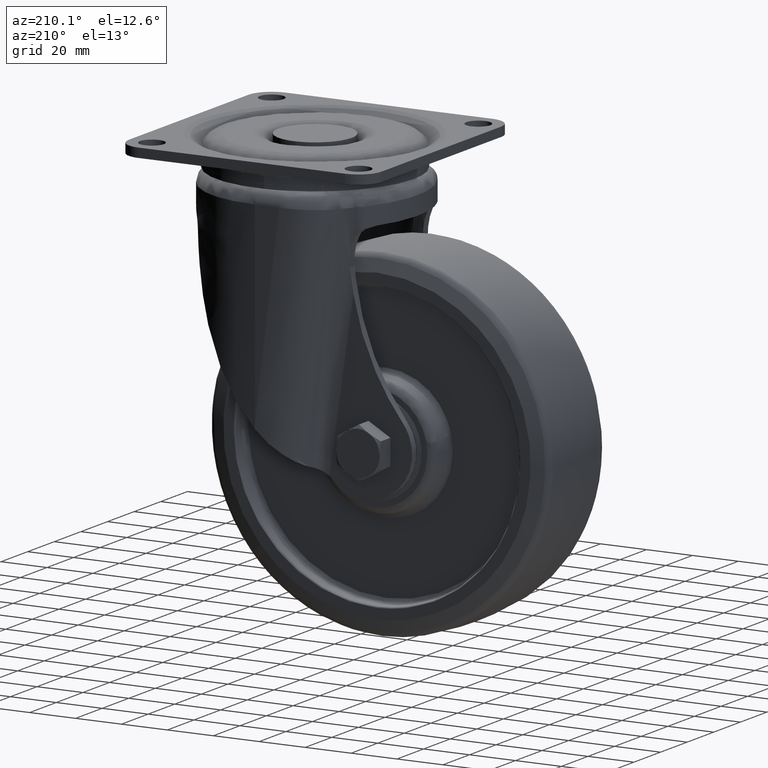
[diagram: clean part render]
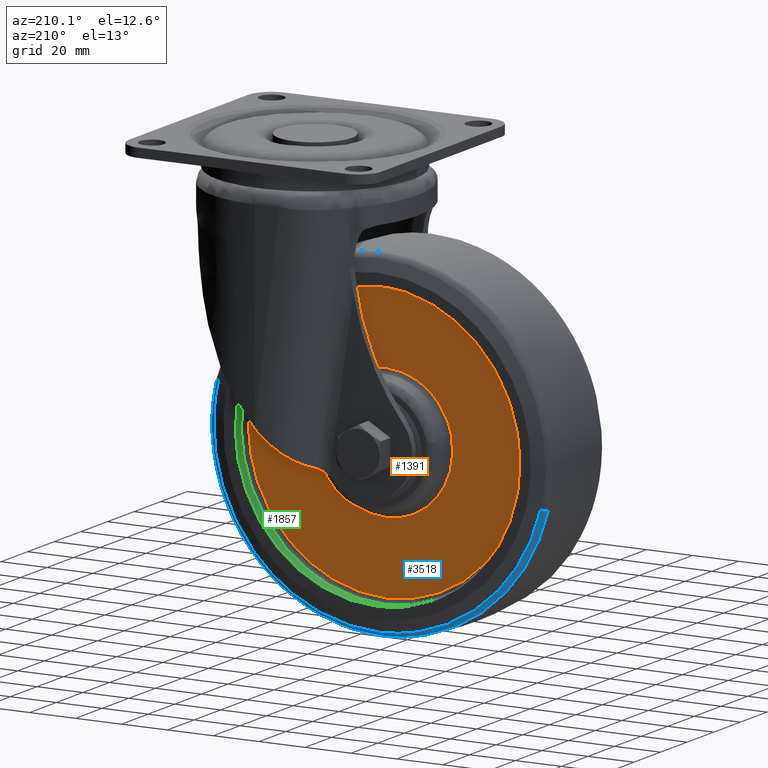
[diagram: same view with three faces highlighted in distinct colors, each labeled with its STEP entity id]
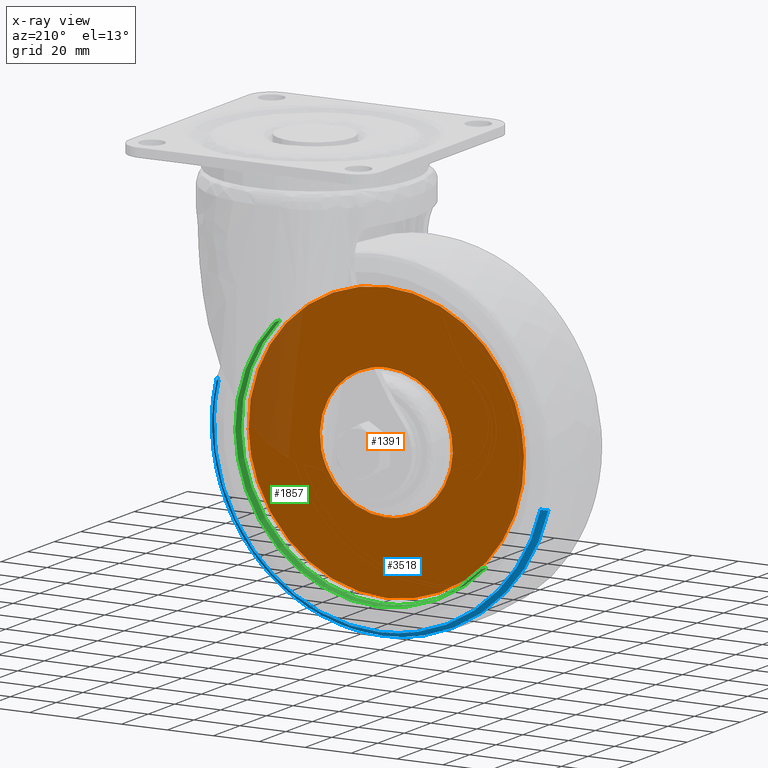
[diagram: x-ray of the same camera — body ghosted, the three highlighted faces saturated]
A machine part, auxiliary view with three faces highlighted in distinct colors.
The next image is the same camera in x-ray (body ghosted, the three faces saturated) — at least one of them is partly hidden behind the body in this view.
Their STEP definitions:

[orange] entity #1391 — the highlighted face is a freeform B-spline surface patch.
#1183=CARTESIAN_POINT('',(-68.370623539552497,15.500000000000000,-106.217617533857090));
#1184=VERTEX_POINT('',#1183);
#1198=CARTESIAN_POINT('',(-40.0,15.500000000000000,-83.046101695836612));
#1199=VERTEX_POINT('',#1198);
#1200=CARTESIAN_POINT('',(-40.0,15.500000000000000,-83.046101695836612));
#1201=CARTESIAN_POINT('',(-63.647901576501191,15.500000000000002,-83.046101695836725));
#1202=CARTESIAN_POINT('',(-68.370623539552497,15.499999999999998,-106.217617533857050));
#1210=(BOUNDED_CURVE()B_SPLINE_CURVE(2,(#1200,#1201,#1202),.UNSPECIFIED.,.F.,.U.)B_SPLINE_CURVE_WITH_KNOTS((3,3),(0.500000000000000,0.715767038508980),.UNSPECIFIED.)CURVE()GEOMETRIC_REPRESENTATION_ITEM()RATIONAL_B_SPLINE_CURVE((1.0,0.747213190309035,0.930770871027291))REPRESENTATION_ITEM(''));
#1211=EDGE_CURVE('',#1199,#1184,#1210,.T.);
#1213=CARTESIAN_POINT('',(-11.629376460447499,15.500000000000000,-117.782382466142910));
#1214=VERTEX_POINT('',#1213);
#1215=CARTESIAN_POINT('',(-11.629376460447508,15.500000000000002,-117.782382466142960));
#1216=CARTESIAN_POINT('',(-11.046101695837708,15.500000000000005,-114.920608990632620));
#1217=CARTESIAN_POINT('',(-11.046101695837660,15.500000000000000,-111.999999999999800));
#1218=CARTESIAN_POINT('',(-11.046101695837070,15.500000000000005,-83.046101695836498));
#1219=CARTESIAN_POINT('',(-40.0,15.500000000000000,-83.046101695836612));
#1227=(BOUNDED_CURVE()B_SPLINE_CURVE(2,(#1215,#1216,#1217,#1218,#1219),.UNSPECIFIED.,.F.,.U.)B_SPLINE_CURVE_WITH_KNOTS((3,2,3),(0.215767038508980,0.250000000000000,0.500000000000000),.UNSPECIFIED.)CURVE()GEOMETRIC_REPRESENTATION_ITEM()RATIONAL_B_SPLINE_CURVE((0.930770871027291,0.959893590877513,1.0,0.707106781186547,1.0))REPRESENTATION_ITEM(''));
#1228=EDGE_CURVE('',#1214,#1199,#1227,.T.);
#1278=CARTESIAN_POINT('',(-40.0,15.500000000000000,-140.953898304163400));
#1279=VERTEX_POINT('',#1278);
#1280=CARTESIAN_POINT('',(-40.0,15.500000000000000,-140.953898304163400));
#1281=CARTESIAN_POINT('',(-16.352098423498806,15.500000000000002,-140.953898304163290));
#1282=CARTESIAN_POINT('',(-11.629376460447507,15.499999999999998,-117.782382466142930));
#1290=(BOUNDED_CURVE()B_SPLINE_CURVE(2,(#1280,#1281,#1282),.UNSPECIFIED.,.F.,.U.)B_SPLINE_CURVE_WITH_KNOTS((3,3),(0.0,0.215767038508980),.UNSPECIFIED.)CURVE()GEOMETRIC_REPRESENTATION_ITEM()RATIONAL_B_SPLINE_CURVE((1.0,0.747213190309035,0.930770871027291))REPRESENTATION_ITEM(''));
#1291=EDGE_CURVE('',#1279,#1214,#1290,.T.);
#1293=CARTESIAN_POINT('',(-68.370623539552497,15.499999999999998,-106.217617533857050));
#1294=CARTESIAN_POINT('',(-68.953898304162294,15.500000000000004,-109.079391009367460));
#1295=CARTESIAN_POINT('',(-68.953898304162351,15.500000000000000,-112.000000000000200));
#1296=CARTESIAN_POINT('',(-68.953898304162948,15.500000000000005,-140.953898304163520));
#1297=CARTESIAN_POINT('',(-40.0,15.500000000000000,-140.953898304163400));
#1305=(BOUNDED_CURVE()B_SPLINE_CURVE(2,(#1293,#1294,#1295,#1296,#1297),.UNSPECIFIED.,.F.,.U.)B_SPLINE_CURVE_WITH_KNOTS((3,2,3),(0.715767038508980,0.750000000000000,1.0),.UNSPECIFIED.)CURVE()GEOMETRIC_REPRESENTATION_ITEM()RATIONAL_B_SPLINE_CURVE((0.930770871027291,0.959893590877513,1.0,0.707106781186547,1.0))REPRESENTATION_ITEM(''));
#1306=EDGE_CURVE('',#1184,#1279,#1305,.T.);
#1314=CARTESIAN_POINT('',(-105.973158199784390,15.500000000000000,-177.993999767416710));
#1315=CARTESIAN_POINT('',(-105.973158199784390,15.500000000000000,-46.005997013932479));
#1316=CARTESIAN_POINT('',(25.973161417418680,15.500000000000000,-177.993999767416710));
#1317=CARTESIAN_POINT('',(25.973161417418680,15.500000000000000,-46.005997013932479));
#1318=B_SPLINE_SURFACE_WITH_KNOTS('',1,1,((#1314,#1316),(#1315,#1317)),.UNSPECIFIED.,.F.,.F.,.U.,(2,2),(2,2),(0.0,131.988002753484210),(0.0,131.946319617202990),.UNSPECIFIED.);
#1319=CARTESIAN_POINT('',(-99.981051397667230,15.500000000000000,-110.492194271617090));
#1320=VERTEX_POINT('',#1319);
#1321=CARTESIAN_POINT('',(-40.0,15.500000000000000,-172.0));
#1322=VERTEX_POINT('',#1321);
#1323=CARTESIAN_POINT('',(-99.981051397667230,15.499999999999996,-110.492194271617170));
#1324=CARTESIAN_POINT('',(-100.000000040439010,15.499999999999996,-111.245978071200620));
#1325=CARTESIAN_POINT('',(-100.000000040183390,15.500000000000000,-111.999999998989910));
#1326=CARTESIAN_POINT('',(-100.000000019839160,15.500000000000005,-171.999999999501260));
#1327=CARTESIAN_POINT('',(-40.0,15.500000000000000,-172.0));
#1335=(BOUNDED_CURVE()B_SPLINE_CURVE(2,(#1323,#1324,#1325,#1326,#1327),.UNSPECIFIED.,.F.,.U.)B_SPLINE_CURVE_WITH_KNOTS((3,2,3),(0.745579891767591,0.750000000000000,1.0),.UNSPECIFIED.)CURVE()GEOMETRIC_REPRESENTATION_ITEM()RATIONAL_B_SPLINE_CURVE((0.989826157676566,0.994821521089224,1.0,0.707106781186547,1.0))REPRESENTATION_ITEM(''));
#1336=EDGE_CURVE('',#1320,#1322,#1335,.T.);
#1337=ORIENTED_EDGE('',*,*,#1336,.F.);
#1338=CARTESIAN_POINT('',(-40.0,15.500000000000000,-52.000000000000007));
#1339=VERTEX_POINT('',#1338);
#1340=CARTESIAN_POINT('',(-40.0,15.500000000000000,-52.000000000000007));
#1341=CARTESIAN_POINT('',(-98.510672590441700,15.499999999999996,-51.999999999488580));
#1342=CARTESIAN_POINT('',(-99.981051397667230,15.499999999999996,-110.492194271617170));
#1350=(BOUNDED_CURVE()B_SPLINE_CURVE(2,(#1340,#1341,#1342),.UNSPECIFIED.,.F.,.U.)B_SPLINE_CURVE_WITH_KNOTS((3,3),(0.500000000000000,0.745579891767591),.UNSPECIFIED.)CURVE()GEOMETRIC_REPRESENTATION_ITEM()RATIONAL_B_SPLINE_CURVE((1.0,0.712285260097324,0.989826157676566))REPRESENTATION_ITEM(''));
#1351=EDGE_CURVE('',#1339,#1320,#1350,.T.);
#1352=ORIENTED_EDGE('',*,*,#1351,.F.);
#1353=CARTESIAN_POINT('',(19.981051397667230,15.500000000000000,-113.507805728382910));
#1354=VERTEX_POINT('',#1353);
#1355=CARTESIAN_POINT('',(19.981051397667230,15.500000000000004,-113.507805728382920));
#1356=CARTESIAN_POINT('',(20.000000040439012,15.500000000000005,-112.754021928799400));
#1357=CARTESIAN_POINT('',(20.000000040183359,15.500000000000000,-112.000000001010210));
#1358=CARTESIAN_POINT('',(20.000000019839185,15.500000000000005,-52.000000000498723));
#1359=CARTESIAN_POINT('',(-40.0,15.500000000000000,-52.000000000000007));
#1367=(BOUNDED_CURVE()B_SPLINE_CURVE(2,(#1355,#1356,#1357,#1358,#1359),.UNSPECIFIED.,.F.,.U.)B_SPLINE_CURVE_WITH_KNOTS((3,2,3),(0.245579891767591,0.250000000000000,0.500000000000000),.UNSPECIFIED.)CURVE()GEOMETRIC_REPRESENTATION_ITEM()RATIONAL_B_SPLINE_CURVE((0.989826157676566,0.994821521089224,1.0,0.707106781186547,1.0))REPRESENTATION_ITEM(''));
#1368=EDGE_CURVE('',#1354,#1339,#1367,.T.);
#1369=ORIENTED_EDGE('',*,*,#1368,.F.);
#1370=CARTESIAN_POINT('',(-40.0,15.500000000000000,-172.0));
#1371=CARTESIAN_POINT('',(18.510672590441715,15.500000000000000,-172.000000000511450));
#1372=CARTESIAN_POINT('',(19.981051397667230,15.500000000000004,-113.507805728382920));
#1380=(BOUNDED_CURVE()B_SPLINE_CURVE(2,(#1370,#1371,#1372),.UNSPECIFIED.,.F.,.U.)B_SPLINE_CURVE_WITH_KNOTS((3,3),(0.0,0.245579891767591),.UNSPECIFIED.)CURVE()GEOMETRIC_REPRESENTATION_ITEM()RATIONAL_B_SPLINE_CURVE((1.0,0.712285260097324,0.989826157676566))REPRESENTATION_ITEM(''));
#1381=EDGE_CURVE('',#1322,#1354,#1380,.T.);
#1382=ORIENTED_EDGE('',*,*,#1381,.F.);
#1383=EDGE_LOOP('',(#1337,#1352,#1369,#1382));
#1384=FACE_OUTER_BOUND('',#1383,.T.);
#1385=ORIENTED_EDGE('',*,*,#1211,.T.);
#1386=ORIENTED_EDGE('',*,*,#1306,.T.);
#1387=ORIENTED_EDGE('',*,*,#1291,.T.);
#1388=ORIENTED_EDGE('',*,*,#1228,.T.);
#1389=EDGE_LOOP('',(#1385,#1386,#1387,#1388));
#1390=FACE_BOUND('',#1389,.T.);
#1391=ADVANCED_FACE('',(#1384,#1390),#1318,.T.);

[blue] entity #3518 — the highlighted face is a freeform B-spline surface patch.
#2801=CARTESIAN_POINT('',(14.902858678139520,20.641463105059870,-158.891471173740510));
#2802=VERTEX_POINT('',#2801);
#2803=CARTESIAN_POINT('',(30.153789081749348,20.641463101787579,-94.924290969989045));
#2804=VERTEX_POINT('',#2803);
#2805=CARTESIAN_POINT('',(14.902858678139520,20.641463105059866,-158.891471173740570));
#2806=CARTESIAN_POINT('',(32.202035710522402,20.641463103641115,-138.636737257600570));
#2807=CARTESIAN_POINT('',(32.202035713149897,20.641463102473342,-111.999999996872010));
#2808=CARTESIAN_POINT('',(32.202035714004190,20.641463102093649,-103.339300971862230));
#2809=CARTESIAN_POINT('',(30.153789081749370,20.641463101787579,-94.924290969989045));
#2817=(BOUNDED_CURVE()B_SPLINE_CURVE(2,(#2805,#2806,#2807,#2808,#2809),.UNSPECIFIED.,.F.,.U.)B_SPLINE_CURVE_WITH_KNOTS((3,2,3),(0.136856838638590,0.250000000000000,0.290401677693490),.UNSPECIFIED.)CURVE()GEOMETRIC_REPRESENTATION_ITEM()RATIONAL_B_SPLINE_CURVE((0.854871031636479,0.867444541128507,1.0,0.952666490299560,0.920631806223271))REPRESENTATION_ITEM(''));
#2818=EDGE_CURVE('',#2802,#2804,#2817,.T.);
#2883=CARTESIAN_POINT('',(-40.0,20.641463107124611,-184.202035700158890));
#2884=VERTEX_POINT('',#2883);
#2885=CARTESIAN_POINT('',(-40.0,20.641463107124611,-184.202035700158890));
#2886=CARTESIAN_POINT('',(-6.714405628514164,20.641463106390521,-184.202035699572920));
#2887=CARTESIAN_POINT('',(14.902858678139520,20.641463105059866,-158.891471173740570));
#2895=(BOUNDED_CURVE()B_SPLINE_CURVE(2,(#2885,#2886,#2887),.UNSPECIFIED.,.F.,.U.)B_SPLINE_CURVE_WITH_KNOTS((3,3),(0.0,0.136856838638590),.UNSPECIFIED.)CURVE()GEOMETRIC_REPRESENTATION_ITEM()RATIONAL_B_SPLINE_CURVE((1.0,0.839662240058041,0.854871031636479))REPRESENTATION_ITEM(''));
#2896=EDGE_CURVE('',#2884,#2802,#2895,.T.);
#2898=CARTESIAN_POINT('',(-110.153789081749390,20.641463101787579,-129.075709030011010));
#2899=VERTEX_POINT('',#2898);
#2900=CARTESIAN_POINT('',(-110.153789081749380,20.641463101787579,-129.075709030010960));
#2901=CARTESIAN_POINT('',(-96.735823680260921,20.641463104456101,-184.202035701925330));
#2902=CARTESIAN_POINT('',(-40.0,20.641463107124611,-184.202035700158890));
#2910=(BOUNDED_CURVE()B_SPLINE_CURVE(2,(#2900,#2901,#2902),.UNSPECIFIED.,.F.,.U.)B_SPLINE_CURVE_WITH_KNOTS((3,3),(0.790401677693490,1.0),.UNSPECIFIED.)CURVE()GEOMETRIC_REPRESENTATION_ITEM()RATIONAL_B_SPLINE_CURVE((0.920631806223270,0.754440290886988,1.0))REPRESENTATION_ITEM(''));
#2911=EDGE_CURVE('',#2899,#2884,#2910,.T.);
#3389=CARTESIAN_POINT('',(-112.076042678666500,18.087646195753450,-129.543593138762300));
#3390=VERTEX_POINT('',#3389);
#3391=CARTESIAN_POINT('',(-110.153789081749370,20.641463101787579,-129.075709030010960));
#3392=CARTESIAN_POINT('',(-111.907623163429830,19.996574330137825,-129.502599164471430));
#3393=CARTESIAN_POINT('',(-112.076042678666550,18.087646195753454,-129.543593138762330));
#3401=(BOUNDED_CURVE()B_SPLINE_CURVE(2,(#3391,#3392,#3393),.UNSPECIFIED.,.F.,.U.)B_SPLINE_CURVE_WITH_KNOTS((3,3),(-1.658470510542367,-0.339992669861621),.UNSPECIFIED.)CURVE()GEOMETRIC_REPRESENTATION_ITEM()RATIONAL_B_SPLINE_CURVE((0.906999252612193,0.764451740751685,0.907331947556131))REPRESENTATION_ITEM(''));
#3402=EDGE_CURVE('',#2899,#3390,#3401,.T.);
#3421=CARTESIAN_POINT('',(32.076042678667278,18.087646195745020,-94.456406861237554));
#3422=VERTEX_POINT('',#3421);
#3436=CARTESIAN_POINT('',(30.153789081749355,20.641463101787576,-94.924290969989045));
#3437=CARTESIAN_POINT('',(31.907623163435286,19.996574330135832,-94.497400835527216));
#3438=CARTESIAN_POINT('',(32.076042678667285,18.087646195745013,-94.456406861237554));
#3446=(BOUNDED_CURVE()B_SPLINE_CURVE(2,(#3436,#3437,#3438),.UNSPECIFIED.,.F.,.U.)B_SPLINE_CURVE_WITH_KNOTS((3,3),(-1.658470510542373,-0.339992669858164),.UNSPECIFIED.)CURVE()GEOMETRIC_REPRESENTATION_ITEM()RATIONAL_B_SPLINE_CURVE((0.906999252612194,0.764451740751311,0.907331947556880))REPRESENTATION_ITEM(''));
#3447=EDGE_CURVE('',#2804,#3422,#3446,.T.);
#3452=CARTESIAN_POINT('',(-110.482351077558290,20.691279172104579,-127.082591990654050));
#3453=CARTESIAN_POINT('',(-110.245550582087420,20.691279172104583,-128.055462398837700));
#3454=CARTESIAN_POINT('',(-92.966245103408099,20.691279172104583,-199.045706489077930));
#3455=CARTESIAN_POINT('',(-22.960269307165063,20.691279172104583,-182.005975796242980));
#3456=CARTESIAN_POINT('',(47.045706489077944,20.691279172104583,-164.966245103408060));
#3457=CARTESIAN_POINT('',(29.766401010357836,20.691279172104579,-93.976001013000129));
#3458=CARTESIAN_POINT('',(29.529600514847001,20.691279172104579,-93.003130604652625));
#3459=CARTESIAN_POINT('',(-112.498241911963590,20.076843865234618,-127.513974577758380));
#3460=CARTESIAN_POINT('',(-112.254668601155120,20.076843865234618,-128.514670399097810));
#3461=CARTESIAN_POINT('',(-94.481151550262155,20.076843865234622,-201.535331752749640));
#3462=CARTESIAN_POINT('',(-22.472909898756264,20.076843865234618,-184.008241651505870));
#3463=CARTESIAN_POINT('',(49.535331752749620,20.076843865234622,-166.481151550262180));
#3464=CARTESIAN_POINT('',(31.761814701814668,20.076843865234625,-93.460490196437831));
#3465=CARTESIAN_POINT('',(31.518241390965176,20.076843865234615,-92.459794374929899));
#3466=CARTESIAN_POINT('',(-112.576498246054610,17.927956011337770,-127.530720732501180));
#3467=CARTESIAN_POINT('',(-112.332662016396200,17.927956011337777,-128.532496728813810));
#3468=CARTESIAN_POINT('',(-94.539959806641036,17.927956011337763,-201.631978328581080));
#3469=CARTESIAN_POINT('',(-22.453990739030001,17.927956011337766,-184.085969067611100));
#3470=CARTESIAN_POINT('',(49.631978328581027,17.927956011337763,-166.539959806641120));
#3471=CARTESIAN_POINT('',(31.839276118783896,17.927956011337773,-93.440478206701144));
#3472=CARTESIAN_POINT('',(31.595439889084417,17.927956011337770,-92.438702210219773));
#3480=(BOUNDED_SURFACE()B_SPLINE_SURFACE(2,2,((#3452,#3459,#3466),(#3453,#3460,#3467),(#3454,#3461,#3468),(#3455,#3462,#3469),(#3456,#3463,#3470),(#3457,#3464,#3471),(#3458,#3465,#3472)),.UNSPECIFIED.,.F.,.F.,.U.)B_SPLINE_SURFACE_WITH_KNOTS((3,1,2,1,3),(3,3),(0.0,2.458461166538965,125.381519494581600,248.304577822624200,250.763038989584490),(0.0,3.857116154836289),.UNSPECIFIED.)GEOMETRIC_REPRESENTATION_ITEM()RATIONAL_B_SPLINE_SURFACE(((0.932753231121404,0.758263209114788,0.933123463035690),(0.927352561971854,0.753872842419643,0.927720650232266),(0.651918435342425,0.529964140965274,0.652177197255246),(0.921951892822305,0.749482475724497,0.922317837428843),(0.651918435342425,0.529964140965274,0.652177197255246),(0.927352561972780,0.753872842420395,0.927720650233192),(0.932753231123255,0.758263209116293,0.933123463037542)))REPRESENTATION_ITEM('')SURFACE());
#3481=ORIENTED_EDGE('',*,*,#2896,.T.);
#3482=ORIENTED_EDGE('',*,*,#2818,.T.);
#3483=ORIENTED_EDGE('',*,*,#3447,.T.);
#3484=CARTESIAN_POINT('',(-40.0,18.087646114566041,-186.180413339348690));
#3485=VERTEX_POINT('',#3484);
#3486=CARTESIAN_POINT('',(-40.0,18.087646114566041,-186.180413339348690));
#3487=CARTESIAN_POINT('',(34.180411771846906,18.087646146469620,-186.180413256323480));
#3488=CARTESIAN_POINT('',(34.180412205931482,18.087646187052300,-111.999999811315310));
#3489=CARTESIAN_POINT('',(34.180412258000310,18.087646191920236,-103.101992821918200));
#3490=CARTESIAN_POINT('',(32.076042678667278,18.087646195745013,-94.456406861237554));
#3498=(BOUNDED_CURVE()B_SPLINE_CURVE(2,(#3486,#3487,#3488,#3489,#3490),.UNSPECIFIED.,.F.,.U.)B_SPLINE_CURVE_WITH_KNOTS((3,2,3),(0.0,0.250000000000000,0.290401676730587),.UNSPECIFIED.)CURVE()GEOMETRIC_REPRESENTATION_ITEM()RATIONAL_B_SPLINE_CURVE((1.0,0.707106781186547,1.0,0.952666491427671,0.920631807750252))REPRESENTATION_ITEM(''));
#3499=EDGE_CURVE('',#3485,#3422,#3498,.T.);
#3500=ORIENTED_EDGE('',*,*,#3499,.F.);
#3501=CARTESIAN_POINT('',(-112.076042678666480,18.087646195753450,-129.543593138762330));
#3502=CARTESIAN_POINT('',(-98.290417424977846,18.087646155166546,-186.180413445006540));
#3503=CARTESIAN_POINT('',(-40.0,18.087646114566041,-186.180413339348690));
#3511=(BOUNDED_CURVE()B_SPLINE_CURVE(2,(#3501,#3502,#3503),.UNSPECIFIED.,.F.,.U.)B_SPLINE_CURVE_WITH_KNOTS((3,3),(0.790401676730594,1.0),.UNSPECIFIED.)CURVE()GEOMETRIC_REPRESENTATION_ITEM()RATIONAL_B_SPLINE_CURVE((0.920631807750241,0.754440289758884,1.0))REPRESENTATION_ITEM(''));
#3512=EDGE_CURVE('',#3390,#3485,#3511,.T.);
#3513=ORIENTED_EDGE('',*,*,#3512,.F.);
#3514=ORIENTED_EDGE('',*,*,#3402,.F.);
#3515=ORIENTED_EDGE('',*,*,#2911,.T.);
#3516=EDGE_LOOP('',(#3481,#3482,#3483,#3500,#3513,#3514,#3515));
#3517=FACE_OUTER_BOUND('',#3516,.T.);
#3518=ADVANCED_FACE('',(#3517),#3480,.T.);

[green] entity #1857 — the highlighted face is a freeform B-spline surface patch.
#1423=CARTESIAN_POINT('',(21.980419735561899,17.499999999458581,-113.558065917593590));
#1424=VERTEX_POINT('',#1423);
#1438=CARTESIAN_POINT('',(-40.0,17.500000000000000,-174.0));
#1439=VERTEX_POINT('',#1438);
#1440=CARTESIAN_POINT('',(-40.0,17.500000000000000,-174.0));
#1441=CARTESIAN_POINT('',(20.461028323096151,17.499999999729294,-173.999999999999970));
#1442=CARTESIAN_POINT('',(21.980419735561902,17.499999999458581,-113.558065917593580));
#1450=(BOUNDED_CURVE()B_SPLINE_CURVE(2,(#1440,#1441,#1442),.UNSPECIFIED.,.F.,.U.)B_SPLINE_CURVE_WITH_KNOTS((3,3),(0.0,0.245579891769506),.UNSPECIFIED.)CURVE()GEOMETRIC_REPRESENTATION_ITEM()RATIONAL_B_SPLINE_CURVE((1.0,0.712285260095080,0.989826157680895))REPRESENTATION_ITEM(''));
#1451=EDGE_CURVE('',#1439,#1424,#1450,.T.);
#1453=CARTESIAN_POINT('',(-84.973211446864440,17.499999999724171,-154.677983225026200));
#1454=VERTEX_POINT('',#1453);
#1455=CARTESIAN_POINT('',(-84.973211446864454,17.499999999724142,-154.677983225026220));
#1456=CARTESIAN_POINT('',(-66.637302552070622,17.499999999886580,-174.000000000000060));
#1457=CARTESIAN_POINT('',(-40.0,17.500000000000000,-174.0));
#1465=(BOUNDED_CURVE()B_SPLINE_CURVE(2,(#1455,#1456,#1457),.UNSPECIFIED.,.F.,.U.)B_SPLINE_CURVE_WITH_KNOTS((3,3),(0.871049525088678,1.0),.UNSPECIFIED.)CURVE()GEOMETRIC_REPRESENTATION_ITEM()RATIONAL_B_SPLINE_CURVE((0.853699661485729,0.848925121342798,1.0))REPRESENTATION_ITEM(''));
#1466=EDGE_CURVE('',#1454,#1439,#1465,.T.);
#1547=CARTESIAN_POINT('',(4.973211446864433,17.499999999724160,-69.322016774973775));
#1548=VERTEX_POINT('',#1547);
#1562=CARTESIAN_POINT('',(21.980419735561902,17.499999999458581,-113.558065917593580));
#1563=CARTESIAN_POINT('',(21.999999999999982,17.499999999461892,-112.779155991702920));
#1564=CARTESIAN_POINT('',(21.999999999999989,17.499999999465299,-112.0));
#1565=CARTESIAN_POINT('',(21.999999999999989,17.499999999573301,-87.264508523557240));
#1566=CARTESIAN_POINT('',(4.973211446864441,17.499999999724142,-69.322016774973775));
#1574=(BOUNDED_CURVE()B_SPLINE_CURVE(2,(#1562,#1563,#1564,#1565,#1566),.UNSPECIFIED.,.F.,.U.)B_SPLINE_CURVE_WITH_KNOTS((3,2,3),(0.245579891769506,0.250000000000000,0.371049525088678),.UNSPECIFIED.)CURVE()GEOMETRIC_REPRESENTATION_ITEM()RATIONAL_B_SPLINE_CURVE((0.989826157680895,0.994821521091468,1.0,0.858181659843750,0.853699661485729))REPRESENTATION_ITEM(''));
#1575=EDGE_CURVE('',#1424,#1548,#1574,.T.);
#1725=CARTESIAN_POINT('',(-84.973211441385232,22.000000001490680,-154.677983230800090));
#1726=VERTEX_POINT('',#1725);
#1727=CARTESIAN_POINT('',(-84.973211441385232,22.000000001490680,-154.677983230800090));
#1728=CARTESIAN_POINT('',(-84.973211446864440,17.499999999724171,-154.677983225026200));
#1729=QUASI_UNIFORM_CURVE('',1,(#1727,#1728),.UNSPECIFIED.,.F.,.U.);
#1730=EDGE_CURVE('',#1726,#1454,#1729,.T.);
#1764=CARTESIAN_POINT('',(4.973211441385217,22.000000001490680,-69.322016769199891));
#1765=VERTEX_POINT('',#1764);
#1779=CARTESIAN_POINT('',(4.973211441385217,22.000000001490680,-69.322016769199891));
#1780=CARTESIAN_POINT('',(4.973211446864433,17.499999999724160,-69.322016774973775));
#1781=QUASI_UNIFORM_CURVE('',1,(#1779,#1780),.UNSPECIFIED.,.F.,.U.);
#1782=EDGE_CURVE('',#1765,#1548,#1781,.T.);
#1787=CARTESIAN_POINT('',(-84.973211002761815,22.112500002986309,-154.677983693012690));
#1788=CARTESIAN_POINT('',(-42.295227309749087,22.112500002986305,-199.651194695774620));
#1789=CARTESIAN_POINT('',(2.677983693012735,22.112500002986309,-156.973211002761790));
#1790=CARTESIAN_POINT('',(47.651194695774549,22.112500002986305,-114.295227309749080));
#1791=CARTESIAN_POINT('',(4.973211002761815,22.112500002986309,-69.322016306987265));
#1792=CARTESIAN_POINT('',(-84.973211002761815,17.384687499370390,-154.677983693012690));
#1793=CARTESIAN_POINT('',(-42.295227309749087,17.384687499370393,-199.651194695774620));
#1794=CARTESIAN_POINT('',(2.677983693012735,17.384687499370390,-156.973211002761790));
#1795=CARTESIAN_POINT('',(47.651194695774549,17.384687499370393,-114.295227309749080));
#1796=CARTESIAN_POINT('',(4.973211002761815,17.384687499370390,-69.322016306987265));
#1804=(BOUNDED_SURFACE()B_SPLINE_SURFACE(2,1,((#1787,#1792),(#1788,#1793),(#1789,#1794),(#1790,#1795),(#1791,#1796)),.UNSPECIFIED.,.F.,.F.,.U.)B_SPLINE_SURFACE_WITH_KNOTS((3,2,3),(2,2),(0.0,102.724963468527600,205.449926937055100),(0.0,4.727812503615922),.UNSPECIFIED.)GEOMETRIC_REPRESENTATION_ITEM()RATIONAL_B_SPLINE_SURFACE(((1.0,1.0),(0.707106781186548,0.707106781186548),(1.0,1.0),(0.707106781186548,0.707106781186548),(1.0,1.0)))REPRESENTATION_ITEM('')SURFACE());
#1805=ORIENTED_EDGE('',*,*,#1575,.T.);
#1806=ORIENTED_EDGE('',*,*,#1782,.F.);
#1807=CARTESIAN_POINT('',(21.995104740635981,22.000000002900268,-112.779094472816000));
#1808=VERTEX_POINT('',#1807);
#1809=CARTESIAN_POINT('',(21.995104740635977,22.000000002900268,-112.779094472815970));
#1810=CARTESIAN_POINT('',(21.999999999999975,22.000000002891262,-112.389562615521190));
#1811=CARTESIAN_POINT('',(21.999999999999979,22.000000002882150,-112.0));
#1812=CARTESIAN_POINT('',(21.999999999999986,22.000000002303612,-87.264508518943813));
#1813=CARTESIAN_POINT('',(4.973211441385224,22.000000001490683,-69.322016769199891));
#1821=(BOUNDED_CURVE()B_SPLINE_CURVE(2,(#1809,#1810,#1811,#1812,#1813),.UNSPECIFIED.,.F.,.U.)B_SPLINE_CURVE_WITH_KNOTS((3,2,3),(0.247784295921592,0.250000000000000,0.371049525108053),.UNSPECIFIED.)CURVE()GEOMETRIC_REPRESENTATION_ITEM()RATIONAL_B_SPLINE_CURVE((0.994854295643698,0.997404141202147,1.0,0.858181659821050,0.853699661484294))REPRESENTATION_ITEM(''));
#1822=EDGE_CURVE('',#1808,#1765,#1821,.T.);
#1823=ORIENTED_EDGE('',*,*,#1822,.F.);
#1824=CARTESIAN_POINT('',(-40.0,22.0,-174.0));
#1825=VERTEX_POINT('',#1824);
#1826=CARTESIAN_POINT('',(-40.0,22.0,-174.0));
#1827=CARTESIAN_POINT('',(21.225739654205949,22.000000001450125,-173.999999999999970));
#1828=CARTESIAN_POINT('',(21.995104740635977,22.000000002900268,-112.779094472815970));
#1836=(BOUNDED_CURVE()B_SPLINE_CURVE(2,(#1826,#1827,#1828),.UNSPECIFIED.,.F.,.U.)B_SPLINE_CURVE_WITH_KNOTS((3,3),(0.0,0.247784295921592),.UNSPECIFIED.)CURVE()GEOMETRIC_REPRESENTATION_ITEM()RATIONAL_B_SPLINE_CURVE((1.0,0.709702639984400,0.994854295643698))REPRESENTATION_ITEM(''));
#1837=EDGE_CURVE('',#1825,#1808,#1836,.T.);
#1838=ORIENTED_EDGE('',*,*,#1837,.F.);
#1839=CARTESIAN_POINT('',(-84.973211441385246,22.000000001490683,-154.677983230800070));
#1840=CARTESIAN_POINT('',(-66.637302547356029,22.000000000615245,-174.000000000000030));
#1841=CARTESIAN_POINT('',(-40.0,22.0,-174.0));
#1849=(BOUNDED_CURVE()B_SPLINE_CURVE(2,(#1839,#1840,#1841),.UNSPECIFIED.,.F.,.U.)B_SPLINE_CURVE_WITH_KNOTS((3,3),(0.871049525108053,1.0),.UNSPECIFIED.)CURVE()GEOMETRIC_REPRESENTATION_ITEM()RATIONAL_B_SPLINE_CURVE((0.853699661484294,0.848925121365497,1.0))REPRESENTATION_ITEM(''));
#1850=EDGE_CURVE('',#1726,#1825,#1849,.T.);
#1851=ORIENTED_EDGE('',*,*,#1850,.F.);
#1852=ORIENTED_EDGE('',*,*,#1730,.T.);
#1853=ORIENTED_EDGE('',*,*,#1466,.T.);
#1854=ORIENTED_EDGE('',*,*,#1451,.T.);
#1855=EDGE_LOOP('',(#1805,#1806,#1823,#1838,#1851,#1852,#1853,#1854));
#1856=FACE_OUTER_BOUND('',#1855,.T.);
#1857=ADVANCED_FACE('',(#1856),#1804,.F.);